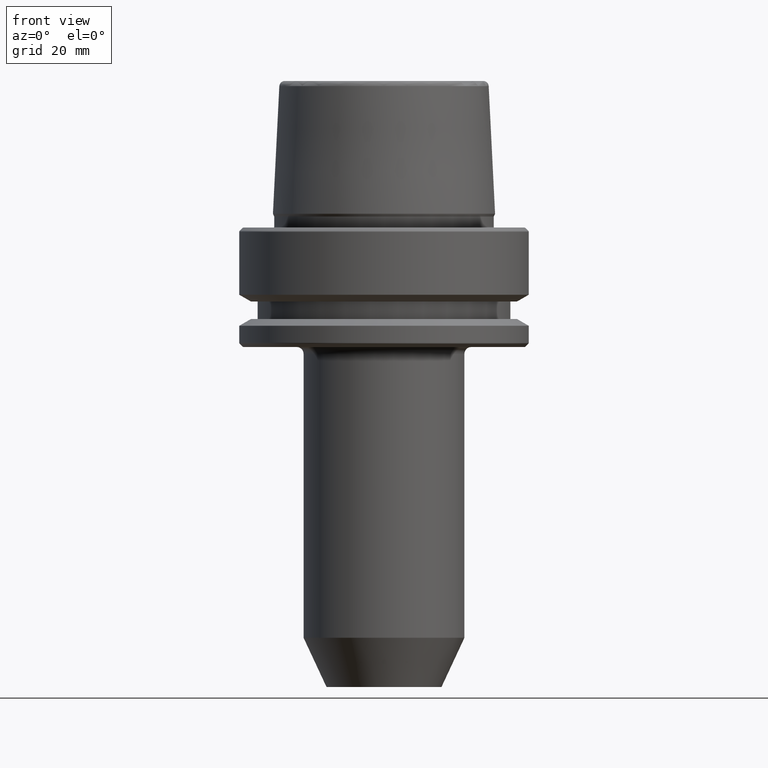
[diagram: clean part render]
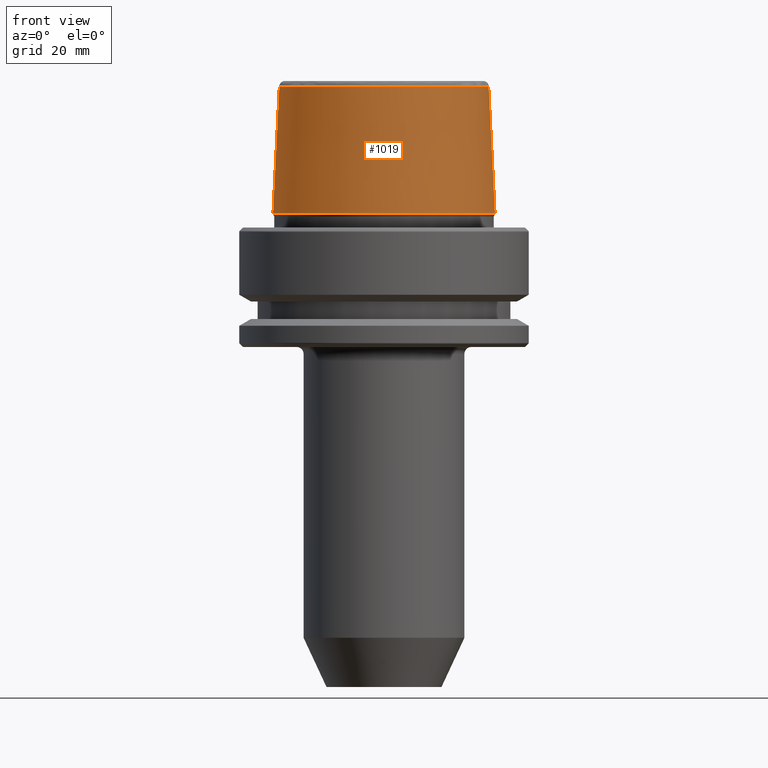
[diagram: same view with one face highlighted and labeled with its STEP entity id]
A machine part, front view. The second image highlights one B-rep face of the part: STEP entity #1019.
In plain terms, the highlighted conical surface has half-angle 2.868 deg.
Its self-contained STEP definition (entity closure, byte-faithful):
#2 = VERTEX_POINT ( 'NONE', #512 ) ;
#4 = EDGE_LOOP ( 'NONE', ( #10, #87, #1218, #1164 ) ) ;
#10 = ORIENTED_EDGE ( 'NONE', *, *, #844, .F. ) ;
#13 = DIRECTION ( 'NONE',  ( -0.05003611051310812000, 0.0000000000000000000, -0.9987474093306675200 ) ) ;
#40 = CARTESIAN_POINT ( 'NONE',  ( -22.77957961851797100, 0.0000000000000000000, 30.76004333261571900 ) ) ;
#44 = DIRECTION ( 'NONE',  ( -0.0000000000000000000, -0.0000000000000000000, 1.000000000000000000 ) ) ;
#58 = LINE ( 'NONE', #1159, #723 ) ;
#87 = ORIENTED_EDGE ( 'NONE', *, *, #361, .F. ) ;
#117 = VERTEX_POINT ( 'NONE', #759 ) ;
#167 = CONICAL_SURFACE ( 'NONE', #1122, 24.17032625081241900, 0.05005701257456005000 ) ;
#201 = FACE_OUTER_BOUND ( 'NONE', #4, .T. ) ;
#319 = CARTESIAN_POINT ( 'NONE',  ( 22.77957961851797100, 2.874852597157249900E-015, 30.76004333261571900 ) ) ;
#361 = EDGE_CURVE ( 'NONE', #770, #445, #485, .T. ) ;
#390 = DIRECTION ( 'NONE',  ( 0.0000000000000000000, 0.0000000000000000000, -1.000000000000000000 ) ) ;
#395 = DIRECTION ( 'NONE',  ( -0.0000000000000000000, -0.0000000000000000000, 1.000000000000000000 ) ) ;
#429 = EDGE_CURVE ( 'NONE', #117, #2, #1085, .T. ) ;
#445 = VERTEX_POINT ( 'NONE', #319 ) ;
#447 = VECTOR ( 'NONE', #13, 1000.000000000000200 ) ;
#485 = CIRCLE ( 'NONE', #1211, 22.77957961851797100 ) ;
#488 = DIRECTION ( 'NONE',  ( 0.05003611051310812000, 6.127656258166108900E-018, -0.9987474093306675200 ) ) ;
#512 = CARTESIAN_POINT ( 'NONE',  ( 24.17032625081241900, 0.0000000000000000000, 3.000000000000002700 ) ) ;
#667 = CARTESIAN_POINT ( 'NONE',  ( -24.17032625081241900, 0.0000000000000000000, 3.000000000000002700 ) ) ;
#693 = LINE ( 'NONE', #667, #447 ) ;
#695 = CARTESIAN_POINT ( 'NONE',  ( 0.0000000000000000000, 0.0000000000000000000, 3.000000000000002700 ) ) ;
#723 = VECTOR ( 'NONE', #488, 1000.000000000000200 ) ;
#759 = CARTESIAN_POINT ( 'NONE',  ( -24.17032625081241900, 2.960011267740467600E-015, 3.000000000000002700 ) ) ;
#770 = VERTEX_POINT ( 'NONE', #40 ) ;
#844 = EDGE_CURVE ( 'NONE', #445, #2, #58, .T. ) ;
#868 = DIRECTION ( 'NONE',  ( 1.000000000000000000, 0.0000000000000000000, 0.0000000000000000000 ) ) ;
#879 = EDGE_CURVE ( 'NONE', #770, #117, #693, .T. ) ;
#975 = CARTESIAN_POINT ( 'NONE',  ( 0.0000000000000000000, 0.0000000000000000000, 3.000000000000002700 ) ) ;
#1019 = ADVANCED_FACE ( 'NONE', ( #201 ), #167, .T. ) ;
#1085 = CIRCLE ( 'NONE', #1131, 24.17032625081241900 ) ;
#1087 = DIRECTION ( 'NONE',  ( 1.000000000000000000, 0.0000000000000000000, 0.0000000000000000000 ) ) ;
#1122 = AXIS2_PLACEMENT_3D ( 'NONE', #975, #390, #1155 ) ;
#1131 = AXIS2_PLACEMENT_3D ( 'NONE', #695, #44, #868 ) ;
#1147 = CARTESIAN_POINT ( 'NONE',  ( 0.0000000000000000000, 0.0000000000000000000, 30.76004333261571900 ) ) ;
#1155 = DIRECTION ( 'NONE',  ( -1.000000000000000000, 0.0000000000000000000, 0.0000000000000000000 ) ) ;
#1159 = CARTESIAN_POINT ( 'NONE',  ( 24.17032625081241900, 2.960011267740467600E-015, 3.000000000000002700 ) ) ;
#1164 = ORIENTED_EDGE ( 'NONE', *, *, #429, .T. ) ;
#1211 = AXIS2_PLACEMENT_3D ( 'NONE', #1147, #395, #1087 ) ;
#1218 = ORIENTED_EDGE ( 'NONE', *, *, #879, .T. ) ;